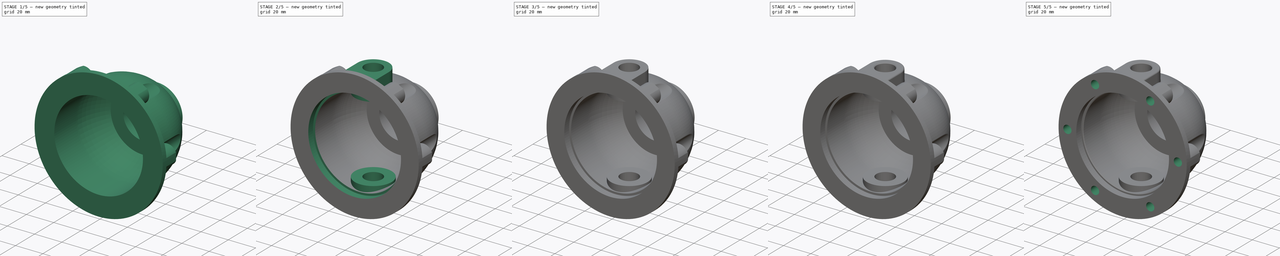
[diagram: build sequence overview — one tinted view per stage of 5, left to right]
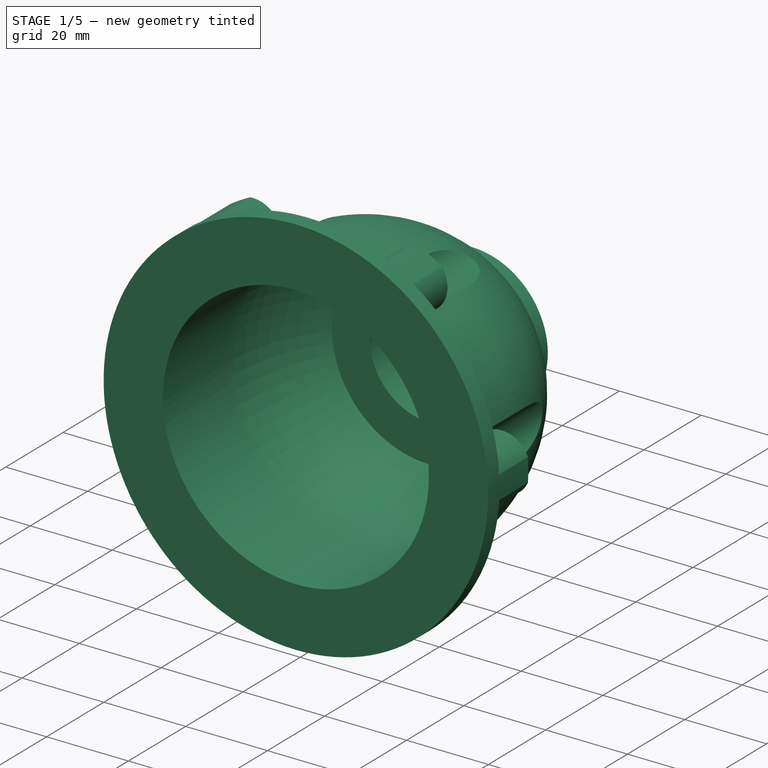
[diagram: stage 1 of 5 — iso view after this stage's code; geometry added in this stage tinted green]
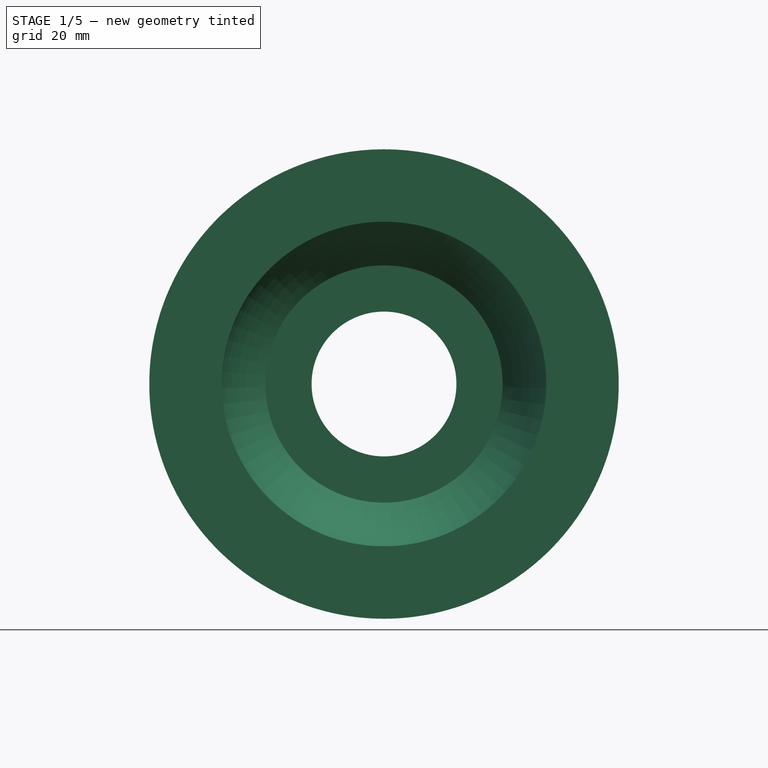
[diagram: stage 1 of 5 — front view after this stage's code; geometry added in this stage tinted green]
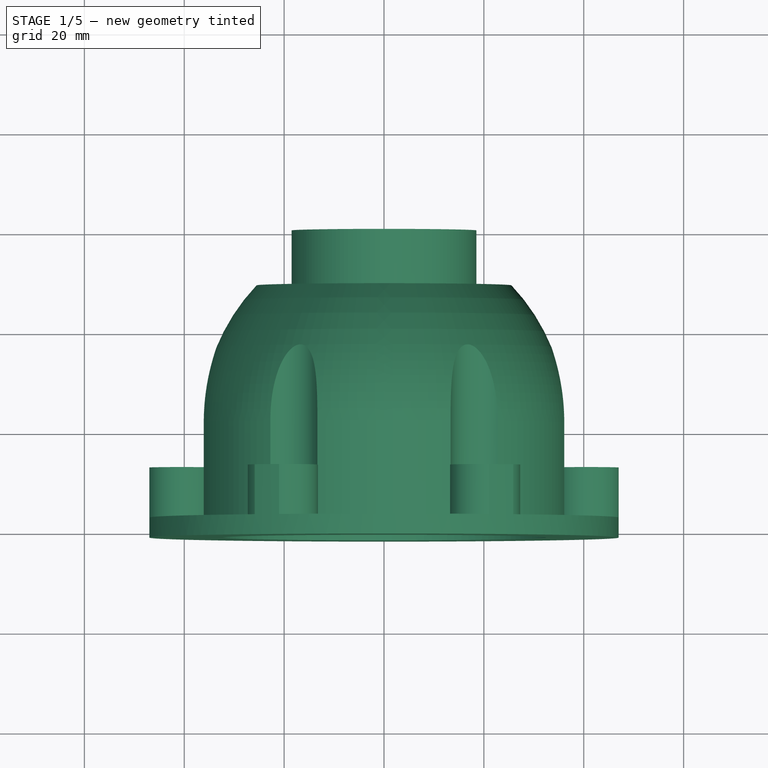
[diagram: stage 1 of 5 — top view after this stage's code; geometry added in this stage tinted green]
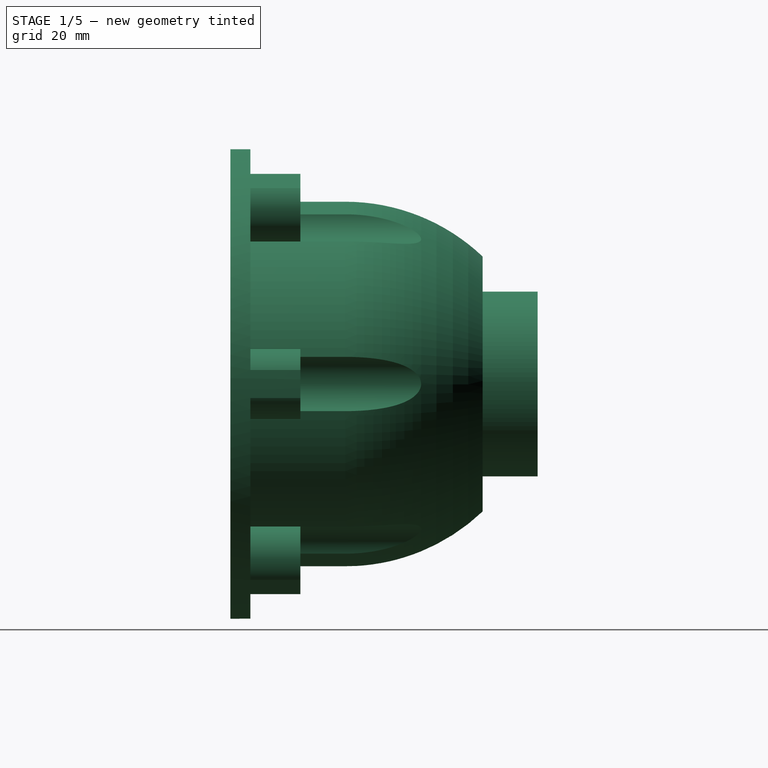
[diagram: stage 1 of 5 — right view after this stage's code; geometry added in this stage tinted green]
FCSTD DOCUMENT  (FreeCAD 1.0R39319 (Git))
Label: DG_Krushna Housing
License: All rights reserved
LicenseURL: https://en.wikipedia.org/wiki/All_rights_reserved
objects: Sketcher::SketchObject×13, PartDesign::Fillet×8, PartDesign::Pocket×5, TechDraw::DrawProjGroupItem×5, PartDesign::Chamfer×4, PartDesign::Pad×2, PartDesign::Mirrored×2, PartDesign::Revolution×1, TechDraw::DrawSVGTemplate×1, PartDesign::Body×1, TechDraw::DrawProjGroup×1, TechDraw::DrawPage×1
note: 91 computed .brp shape members not serialized (recipe doc carries the construction recipe); baked Part::Feature solids carry a one-line shape summary decoded from their .brp

FEATURE [Sketcher::SketchObject] Sketch
  ArcFitTolerance = 1e-06
  AttachmentSupport = -> [YZ_Plane]
  FullyConstrained = true
  MakeInternals = false
  MapMode = 5
  Placement = pos=(0,0,0) rot=(0.57735,0.57735,0.57735;2.0944rad)
  sketch-geometry (13):
    g0: LineSegment StartX=0 StartY=14.5 StartZ=0 EndX=-15 EndY=14.5 EndZ=0
    g1: LineSegment StartX=-15 StartY=14.5 StartZ=0 EndX=-15 EndY=23.75 EndZ=0
    g2: LineSegment [constr] StartX=-61.5 StartY=32.5 StartZ=0 EndX=0 EndY=32.5 EndZ=0
    g3: LineSegment StartX=-61.5 StartY=32.5 StartZ=0 EndX=-61.5 EndY=47 EndZ=0
    g4: LineSegment StartX=-57.5 StartY=36.5 StartZ=0 EndX=-57.5 EndY=47 EndZ=0
    g5: LineSegment StartX=-11 StartY=18.5 StartZ=0 EndX=-11 EndY=25.5217 EndZ=0
    g6: LineSegment StartX=0 StartY=18.5 StartZ=0 EndX=-11 EndY=18.5 EndZ=0
    g7: LineSegment StartX=-61.5 StartY=47 StartZ=0 EndX=-57.5 EndY=47 EndZ=0
    g8: LineSegment StartX=0 StartY=14.5 StartZ=0 EndX=0 EndY=18.5 EndZ=0
    g9: LineSegment StartX=-61.5 StartY=32.5 StartZ=0 EndX=-38.5 EndY=32.5 EndZ=0
    g10: LineSegment StartX=-57.5 StartY=36.5 StartZ=0 EndX=-38.5 EndY=36.5 EndZ=0
    g11: ArcOfCircle CenterX=-38.5 CenterY=-3.43214 CenterZ=0 NormalX=0 NormalY=0 NormalZ=1 AngleXU=0 Radius=35.9321 StartAngle=0.857922 EndAngle=1.5708
    g12: ArcOfCircle CenterX=-38.5 CenterY=-3.43214 CenterZ=0 NormalX=0 NormalY=0 NormalZ=1 AngleXU=0 Radius=39.9321 StartAngle=0.811146 EndAngle=1.5708
  constraints (38):
    c: Distance(g0) = 15
    c: PointOnObject(g0,g-2)
    c: Horizontal(g0)
    c: Coincident(g0,g1)
    c: Vertical(g1)
    c: Distance(g1,g1) = 9.25
    c: Distance(g-1,g0) = 14.5
    c: PointOnObject(g2,g-2)
    c: Horizontal(g2)
    c: Distance(g-1,g2) = 32.5
    c: Distance(g3) = 14.5
    c: Vertical(g3)
    c: Coincident(g5,g6)
    c: Coincident(g7,g3)
    c: Coincident(g7,g4)
    c: Horizontal(g7)
    c: Vertical(g4)
    c: Distance(g4,g3) = 4
    c: Vertical(g5)
    c: Horizontal(g6)
    c: Distance(g5,g1) = 4
    c: DistanceY(g2,g4) = 4
    c: PointOnObject(g6,g-2)
    c: Distance(g0,g6) = 4
    c: Coincident(g8,g0)
    c: Coincident(g8,g6)
    c: Distance(g-2,g3) = 61.5
    c: Coincident(g9,g3)
    c: PointOnObject(g9,g2)
    c: Coincident(g10,g4)
    c: Horizontal(g10)
    c: Coincident(g11,g1)
    c: Coincident(g12,g5)
    c: DistanceX(g9,g9) = 23
    c: Tangent(g11,g9) = 1.5708
    c: Tangent(g12,g10) = 1.5708
    c: Coincident(g12,g11)
    c: Coincident(g2,g3)
FEATURE [PartDesign::Revolution] Revolution
  Angle = 360
  Angle2 = 60
  Axis = (1e-16,1,-1e-16)
  Base = (0,0,0)
  Placement = pos=(0,0,0) rot=(1,1,1;2.0944rad)
  Profile = -> Sketch
  ReferenceAxis = -> Y_Axis
  Refine = true
  Suppressed = false
  Type = 0
FEATURE [Sketcher::SketchObject] Sketch001
  ArcFitTolerance = 1e-06
  AttachmentSupport = -> [Revolution]
  FullyConstrained = true
  MakeInternals = false
  MapMode = 5
  Placement = pos=(-6.3e-15,-57.5,1.9e-14) rot=(0.57735,0.57735,0.57735;4.18879rad)
  sketch-geometry (11):
    g0: Circle [constr] CenterX=0 CenterY=0 CenterZ=0 NormalX=0 NormalY=0 NormalZ=1 AngleXU=0 Radius=40.5
    g1: Circle CenterX=0 CenterY=40.5 CenterZ=0 NormalX=0 NormalY=0 NormalZ=1 AngleXU=0 Radius=7
    g2: Circle CenterX=-35.074 CenterY=20.25 CenterZ=0 NormalX=0 NormalY=0 NormalZ=1 AngleXU=0 Radius=7
    g3: Circle CenterX=-35.074 CenterY=-20.25 CenterZ=0 NormalX=0 NormalY=0 NormalZ=1 AngleXU=0 Radius=7
    g4: Circle CenterX=0 CenterY=-40.5 CenterZ=0 NormalX=0 NormalY=0 NormalZ=1 AngleXU=0 Radius=7
    g5: Circle CenterX=35.074 CenterY=-20.25 CenterZ=0 NormalX=0 NormalY=0 NormalZ=1 AngleXU=0 Radius=7
    g6: Circle CenterX=35.074 CenterY=20.25 CenterZ=0 NormalX=0 NormalY=0 NormalZ=1 AngleXU=0 Radius=7
    g7: LineSegment [constr] StartX=0 StartY=0 StartZ=0 EndX=-35.074 EndY=20.25 EndZ=0
    g8: LineSegment [constr] StartX=0 StartY=0 StartZ=0 EndX=35.074 EndY=20.25 EndZ=0
    g9: LineSegment [constr] StartX=0 StartY=0 StartZ=0 EndX=35.074 EndY=-20.25 EndZ=0
    g10: LineSegment [constr] StartX=0 StartY=0 StartZ=0 EndX=-35.074 EndY=-20.25 EndZ=0
  constraints (24):
    c: Diameter(g0) = 81
    c: Coincident(g0,g-1)
    c: PointOnObject(g1,g-2)
    c: PointOnObject(g1,g0)
    c: Coincident(g7,g0)
    c: Coincident(g7,g2)
    c: Coincident(g8,g0)
    c: Coincident(g8,g6)
    c: Coincident(g9,g0)
    c: Coincident(g9,g5)
    c: Coincident(g10,g0)
    c: Coincident(g10,g3)
    c: Angle(g7,g-1) = 0.523599
    c: Angle(g-1,g8) = 0.523599
    c: Angle(g9,g-1) = 0.523599
    c: Angle(g-1,g10) = 0.523599
    c: PointOnObject(g4,g-2)
    c: PointOnObject(g4,g0)
    c: PointOnObject(g5,g0)
    c: PointOnObject(g6,g0)
    c: PointOnObject(g3,g0)
    c: PointOnObject(g2,g0)
    c: Equal(g1, g2-g6) x5
    c: Diameter(g1) = 14
FEATURE [PartDesign::Pocket] Pocket  label="first cut"
  BaseFeature = -> Revolution
  Direction = (0,-1,0)
  Length = 5
  Length2 = 5
  Placement = pos=(0,0,0) rot=(1,1,1;2.0944rad)
  Profile = -> Sketch001
  ReferenceAxis = -> Sketch001 [N_Axis]
  Refine = true
  Reversed = true
  Suppressed = false
  Type = 1
FEATURE [Sketcher::SketchObject] Sketch002
  ArcFitTolerance = 1e-06
  AttachmentSupport = -> [Pocket]
  FullyConstrained = true
  MakeInternals = false
  MapMode = 5
  Placement = pos=(-6.3e-15,-57.5,1.9e-14) rot=(0.57735,0.57735,0.57735;4.18879rad)
  sketch-geometry (11):
    g0: Circle [constr] CenterX=0 CenterY=0 CenterZ=0 NormalX=0 NormalY=0 NormalZ=1 AngleXU=0 Radius=40.5
    g1: Circle CenterX=0 CenterY=40.5 CenterZ=0 NormalX=0 NormalY=0 NormalZ=1 AngleXU=0 Radius=7
    g2: Circle CenterX=-35.074 CenterY=20.25 CenterZ=0 NormalX=0 NormalY=0 NormalZ=1 AngleXU=0 Radius=7
    g3: Circle CenterX=-35.074 CenterY=-20.25 CenterZ=0 NormalX=0 NormalY=0 NormalZ=1 AngleXU=0 Radius=7
    g4: Circle CenterX=0 CenterY=-40.5 CenterZ=0 NormalX=0 NormalY=0 NormalZ=1 AngleXU=0 Radius=7
    g5: Circle CenterX=35.074 CenterY=-20.25 CenterZ=0 NormalX=0 NormalY=0 NormalZ=1 AngleXU=0 Radius=7
    g6: Circle CenterX=35.074 CenterY=20.25 CenterZ=0 NormalX=0 NormalY=0 NormalZ=1 AngleXU=0 Radius=7
    g7: LineSegment [constr] StartX=0 StartY=0 StartZ=0 EndX=-35.074 EndY=20.25 EndZ=0
    g8: LineSegment [constr] StartX=0 StartY=0 StartZ=0 EndX=35.074 EndY=20.25 EndZ=0
    g9: LineSegment [constr] StartX=0 StartY=0 StartZ=0 EndX=35.074 EndY=-20.25 EndZ=0
    g10: LineSegment [constr] StartX=0 StartY=0 StartZ=0 EndX=-35.074 EndY=-20.25 EndZ=0
  constraints (24):
    c: Diameter(g0) = 81
    c: Coincident(g0,g-1)
    c: PointOnObject(g1,g-2)
    c: PointOnObject(g1,g0)
    c: Coincident(g7,g0)
    c: Coincident(g7,g2)
    c: Coincident(g8,g0)
    c: Coincident(g8,g6)
    c: Coincident(g9,g0)
    c: Coincident(g9,g5)
    c: Coincident(g10,g0)
    c: Coincident(g10,g3)
    c: Angle(g7,g-1) = 0.523599
    c: Angle(g-1,g8) = 0.523599
    c: Angle(g9,g-1) = 0.523599
    c: Angle(g-1,g10) = 0.523599
    c: PointOnObject(g4,g-2)
    c: PointOnObject(g4,g0)
    c: PointOnObject(g5,g0)
    c: PointOnObject(g6,g0)
    c: PointOnObject(g3,g0)
    c: PointOnObject(g2,g0)
    c: Equal(g1, g2-g6) x5
    c: Diameter(g1) = 14
FEATURE [PartDesign::Pad] Pad  label="hole pad"
  BaseFeature = -> Pocket
  Direction = (0,1,0)
  Length = 10
  Length2 = 10
  Placement = pos=(0,0,0) rot=(1,1,1;2.0944rad)
  Profile = -> Sketch002
  ReferenceAxis = -> Sketch002 [N_Axis]
  Refine = true
  Suppressed = false
  Type = 0
FEATURE [Sketcher::SketchObject] Sketch003
  ArcFitTolerance = 1e-06
  AttachmentSupport = -> [Pad]
  FullyConstrained = true
  MakeInternals = false
  MapMode = 5
  Placement = pos=(-6.3e-15,-57.5,1.9e-14) rot=(0.57735,0.57735,0.57735;4.18879rad)
  sketch-geometry (2):
    g0: Circle CenterX=0 CenterY=0 CenterZ=0 NormalX=0 NormalY=0 NormalZ=1 AngleXU=0 Radius=47
    g1: Circle CenterX=0 CenterY=0 CenterZ=0 NormalX=0 NormalY=0 NormalZ=1 AngleXU=0 Radius=58.135
  constraints (4):
    c: Coincident(g0,g-1)
    c: PointOnObject(g-3,g0)
    c: Coincident(g1,g0)
    c: Diameter(g1) = 116.27
FEATURE [PartDesign::Pocket] Pocket001
  BaseFeature = -> Pad
  Direction = (0,-1,0)
  Length = 5
  Length2 = 5
  Placement = pos=(0,0,0) rot=(1,1,1;2.0944rad)
  Profile = -> Sketch003
  ReferenceAxis = -> Sketch003 [N_Axis]
  Refine = true
  Reversed = true
  Suppressed = false
  Type = 1
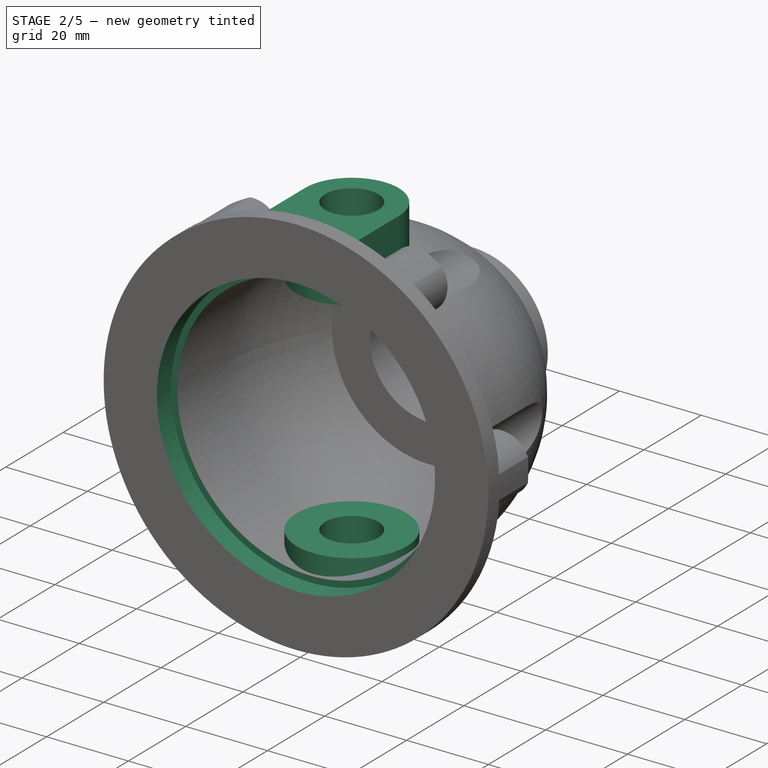
[diagram: stage 2 of 5 — iso view after this stage's code; geometry added in this stage tinted green]
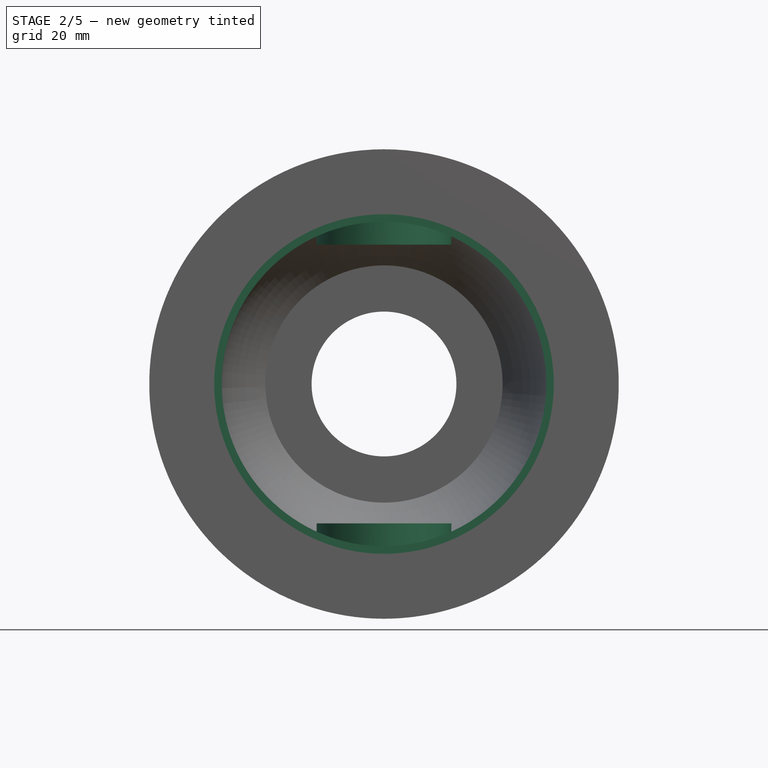
[diagram: stage 2 of 5 — front view after this stage's code; geometry added in this stage tinted green]
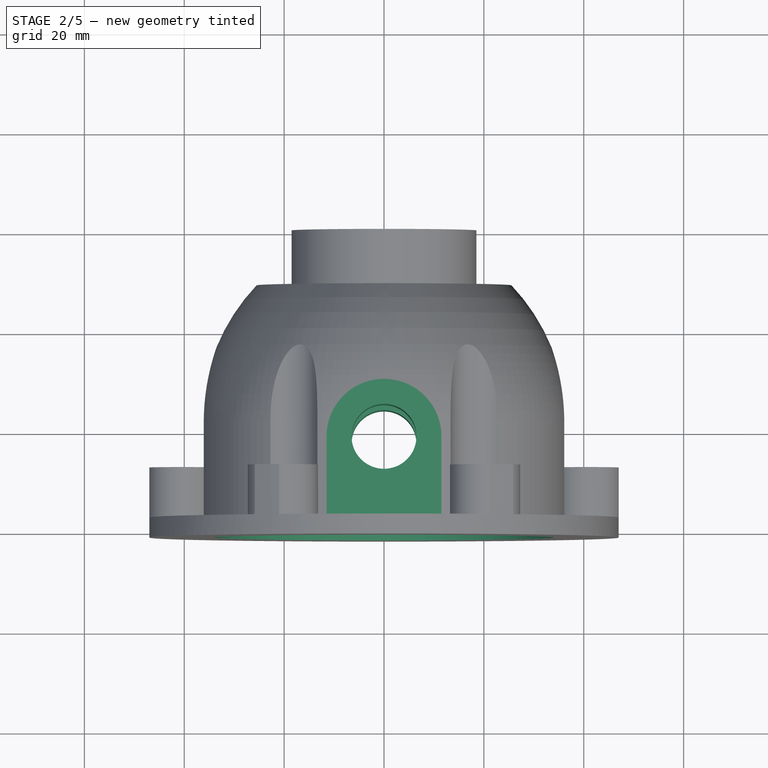
[diagram: stage 2 of 5 — top view after this stage's code; geometry added in this stage tinted green]
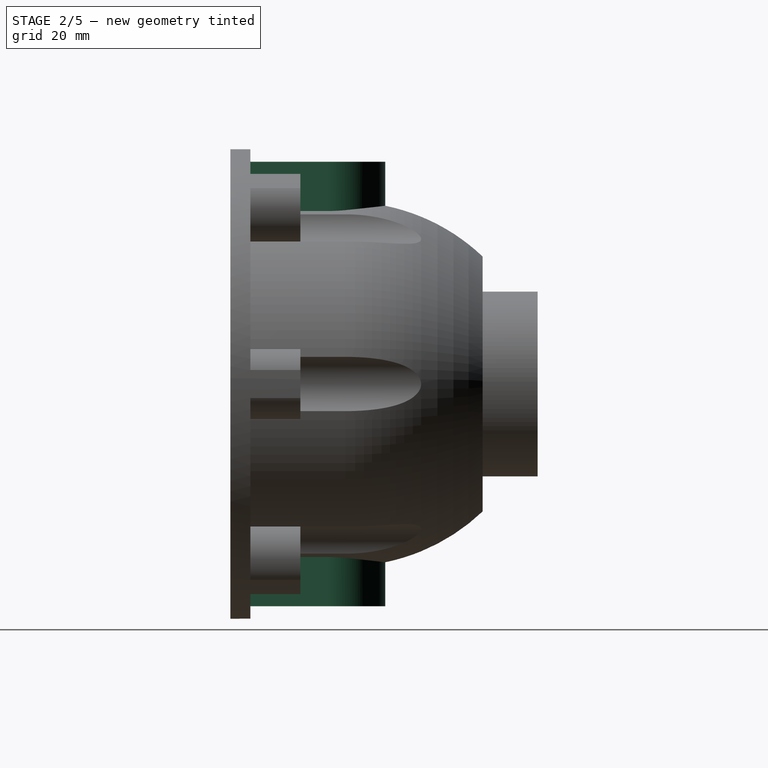
[diagram: stage 2 of 5 — right view after this stage's code; geometry added in this stage tinted green]
FEATURE [Sketcher::SketchObject] Sketch004
  ArcFitTolerance = 1e-06
  AttachmentSupport = -> [Pocket001]
  ExternalGeometry = -> [Pocket001]
  FullyConstrained = true
  MakeInternals = false
  MapMode = 5
  Placement = pos=(-6.8e-15,-61.5,2.03e-14) rot=(0.57735,0.57735,-0.57735;2.0944rad)
  sketch-geometry (1):
    g0: Circle CenterX=0 CenterY=0 CenterZ=0 NormalX=0 NormalY=0 NormalZ=1 AngleXU=0 Radius=34
  constraints (2):
    c: Diameter(g0) = 68
    c: Coincident(g0,g-1)
FEATURE [PartDesign::Pocket] Pocket002
  BaseFeature = -> Pocket001
  Direction = (0,1,-1.3e-15)
  Length = 5
  Length2 = 5
  Placement = pos=(0,0,0) rot=(1,1,1;2.0944rad)
  Profile = -> Sketch004
  ReferenceAxis = -> Sketch004 [N_Axis]
  Refine = true
  Suppressed = false
  Type = 0
FEATURE [Sketcher::SketchObject] Sketch005
  ArcFitTolerance = 1e-06
  AttachmentOffset = pos=(0,0,36.5) rot=(0,0,1;0rad)
  AttachmentSupport = -> [XY_Plane]
  ExternalGeometry = -> [Pocket002]
  FullyConstrained = true
  MakeInternals = false
  MapMode = 5
  Placement = pos=(0,0,36.5) rot=(0,0,1;0rad)
  sketch-geometry (5):
    g0: Circle CenterX=0 CenterY=-42 CenterZ=0 NormalX=0 NormalY=0 NormalZ=1 AngleXU=0 Radius=6.5
    g1: ArcOfCircle CenterX=0 CenterY=-42 CenterZ=0 NormalX=0 NormalY=0 NormalZ=1 AngleXU=0 Radius=11.5 StartAngle=0 EndAngle=3.14159
    g2: LineSegment StartX=-11.5 StartY=-57.5 StartZ=0 EndX=-11.5 EndY=-42 EndZ=0
    g3: LineSegment StartX=11.5 StartY=-57.5 StartZ=0 EndX=11.5 EndY=-42 EndZ=0
    g4: LineSegment StartX=11.5 StartY=-57.5 StartZ=0 EndX=-11.5 EndY=-57.5 EndZ=0
  constraints (13):
    c: Diameter(g0) = 13
    c: Diameter(g1) = 23
    c: Vertical(g2)
    c: Vertical(g3)
    c: Tangent(g1,g3) = -1.5708
    c: Tangent(g1,g2) = 1.5708
    c: Coincident(g4,g3)
    c: Coincident(g4,g2)
    c: Coincident(g0,g1)
    c: PointOnObject(g2,g-3)
    c: PointOnObject(g3,g-5)
    c: PointOnObject(g0,g-2)
    c: DistanceY(g-6,g0) = 19.5
FEATURE [Sketcher::SketchObject] Sketch009
  ArcFitTolerance = 1e-06
  AttachmentSupport = -> [YZ_Plane]
  FullyConstrained = true
  MakeInternals = false
  MapMode = 5
  Placement = pos=(0,0,0) rot=(0.57735,0.57735,0.57735;2.0944rad)
FEATURE [Sketcher::SketchObject] Sketch012
  ArcFitTolerance = 1e-06
  FullyConstrained = true
  MakeInternals = false
  MapMode = 5
  Placement = pos=(-2.96e-14,9.9e-15,44.5) rot=(0,0,-1;1.5708rad)
  constraints (1):
    c: Diameter(g-4) = 13
FEATURE [PartDesign::Pad] Pad001
  BaseFeature = -> Pocket002
  Direction = (0,0,1)
  Length = 8
  Length2 = 2
  Placement = pos=(0,0,0) rot=(1,1,1;2.0944rad)
  Profile = -> Sketch005
  ReferenceAxis = -> Sketch005 [N_Axis]
  Refine = true
  Suppressed = false
  Type = 4
FEATURE [PartDesign::Mirrored] Mirrored
  BaseFeature = -> Pad001
  MirrorPlane = -> XY_Plane
  Originals = -> [Pad001]
  Placement = pos=(0,0,0) rot=(1,1,1;2.0944rad)
  Refine = true
  Suppressed = false
  TransformMode = 0
FEATURE [Sketcher::SketchObject] Sketch006
  ArcFitTolerance = 1e-06
  AttachmentOffset = pos=(0,0,32.5) rot=(0,0,1;0rad)
  AttachmentSupport = -> [XY_Plane]
  ExternalGeometry = -> [Mirrored]
  FullyConstrained = true
  MakeInternals = false
  MapMode = 5
  Placement = pos=(0,0,32.5) rot=(0,0,1;0rad)
  sketch-geometry (2):
    g0: Circle CenterX=0 CenterY=-42 CenterZ=0 NormalX=0 NormalY=0 NormalZ=1 AngleXU=0 Radius=6.5
    g1: Circle CenterX=0 CenterY=-42 CenterZ=0 NormalX=0 NormalY=0 NormalZ=1 AngleXU=0 Radius=13.5
  constraints (4):
    c: Coincident(g0,g-5)
    c: Equal(g0,g-5)
    c: Diameter(g1) = 27
    c: Coincident(g1,g0)
FEATURE [PartDesign::Mirrored] Mirrored001
  BaseFeature = -> Mirrored
  MirrorPlane = -> XY_Plane
  Placement = pos=(0,0,0) rot=(1,1,1;2.0944rad)
  Refine = true
  Suppressed = false
  TransformMode = 0
FEATURE [Sketcher::SketchObject] Sketch007
  ArcFitTolerance = 1e-06
  AttachmentSupport = -> [Mirrored001]
  ExternalGeometry = -> [Mirrored001]
  FullyConstrained = true
  MakeInternals = false
  MapMode = 5
  Placement = pos=(0,0,44.5) rot=(0,0,-1;1.5708rad)
  sketch-geometry (1):
    g0: Circle CenterX=42 CenterY=0 CenterZ=0 NormalX=0 NormalY=0 NormalZ=1 AngleXU=0 Radius=6.5
  constraints (2):
    c: Coincident(g0,g-3)
    c: Equal(g0,g-3)
FEATURE [Sketcher::SketchObject] Sketch010
  ArcFitTolerance = 1e-06
  AttachmentSupport = -> [Pad001]
  FullyConstrained = true
  MakeInternals = false
  MapMode = 5
  Placement = pos=(0,0,44.5) rot=(0,0,-1;1.5708rad)
FEATURE [Sketcher::SketchObject] Sketch011
  ArcFitTolerance = 1e-06
  AttachmentSupport = -> [Pad001]
  ExternalGeometry = -> [Pad001]
  FullyConstrained = true
  MakeInternals = false
  MapMode = 5
  Placement = pos=(0,0,44.5) rot=(0,0,-1;1.5708rad)
  constraints (2):
    c: Radius(g-5) = 11.5
    c: Distance(g-4,g-4) = 15.5
FEATURE [PartDesign::Pocket] Pocket003
  BaseFeature = -> Mirrored001
  Direction = (0,0,-1)
  Length = 5
  Length2 = 5
  Placement = pos=(0,0,0) rot=(1,1,1;2.0944rad)
  Profile = -> Sketch007
  ReferenceAxis = -> Sketch007 [N_Axis]
  Refine = true
  Suppressed = false
  Type = 1
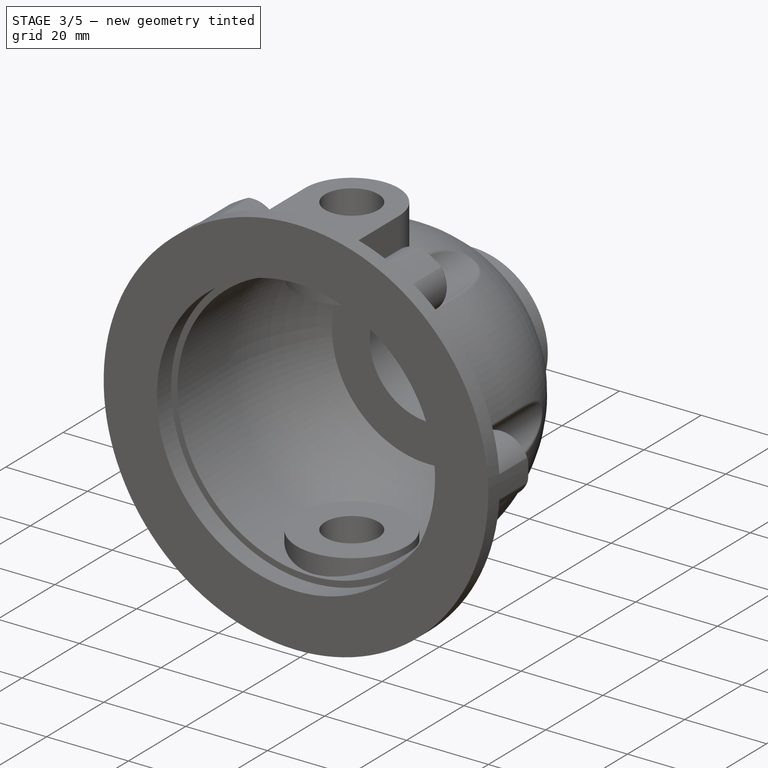
[diagram: stage 3 of 5 — iso view after this stage's code; geometry added in this stage tinted green]
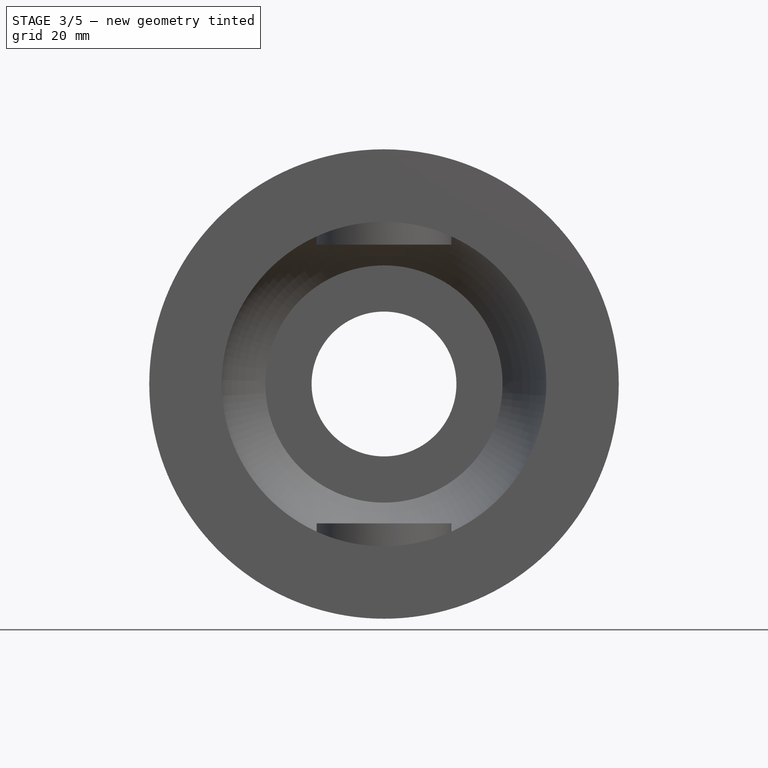
[diagram: stage 3 of 5 — front view after this stage's code; geometry added in this stage tinted green]
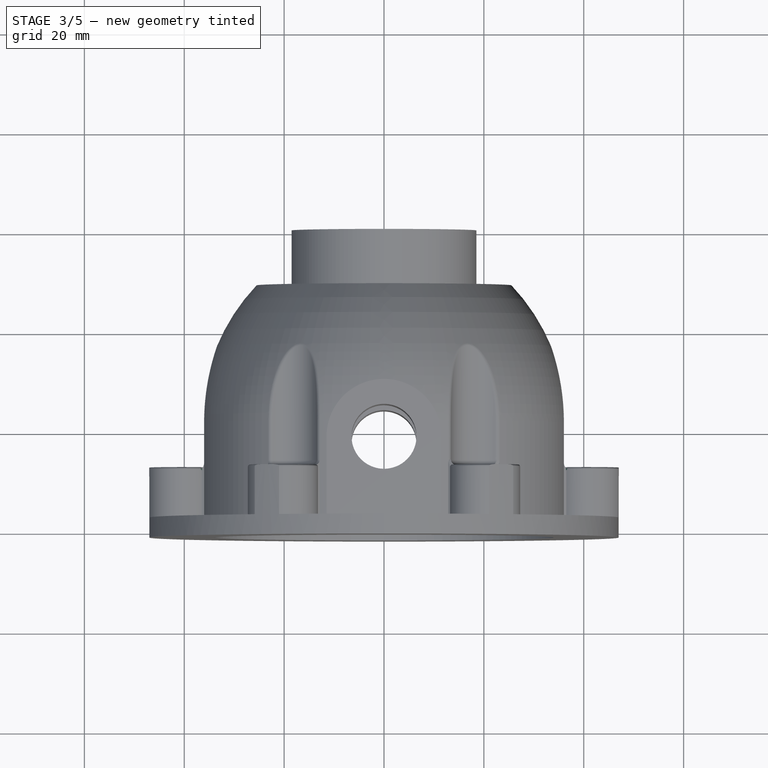
[diagram: stage 3 of 5 — top view after this stage's code; geometry added in this stage tinted green]
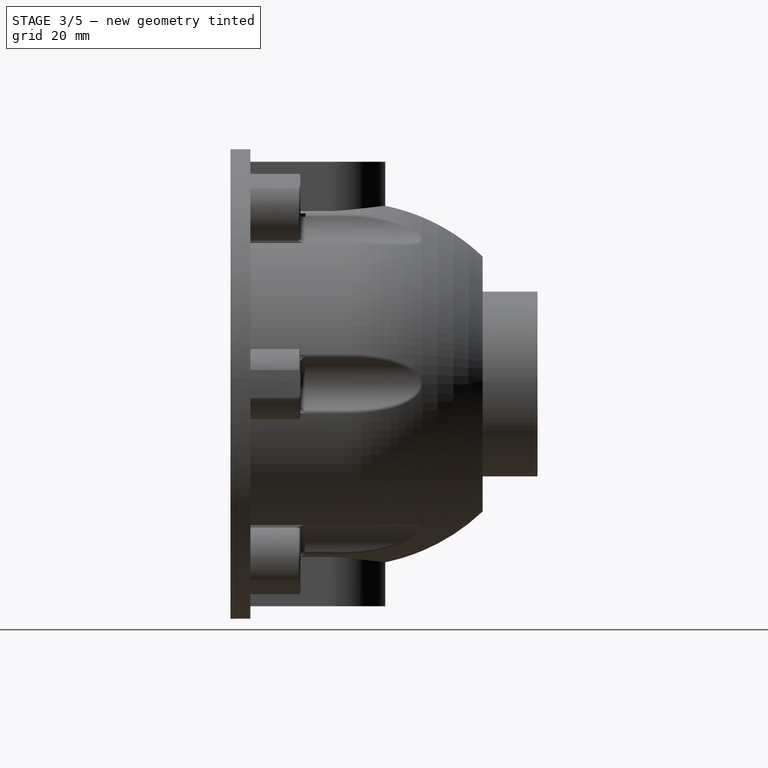
[diagram: stage 3 of 5 — right view after this stage's code; geometry added in this stage tinted green]
FEATURE [Sketcher::SketchObject] Sketch008
  ArcFitTolerance = 1e-06
  AttachmentSupport = -> [Pocket003]
  FullyConstrained = true
  MakeInternals = false
  MapMode = 5
  Placement = pos=(0,-47.5,0) rot=(0.57735,0.57735,0.57735;4.18879rad)
  sketch-geometry (11):
    g0: Circle [constr] CenterX=0 CenterY=0 CenterZ=0 NormalX=0 NormalY=0 NormalZ=1 AngleXU=0 Radius=40.5
    g1: Circle CenterX=0 CenterY=40.5 CenterZ=0 NormalX=0 NormalY=0 NormalZ=1 AngleXU=0 Radius=3
    g2: Circle CenterX=-35.074 CenterY=20.25 CenterZ=0 NormalX=0 NormalY=0 NormalZ=1 AngleXU=0 Radius=3
    g3: Circle CenterX=-35.074 CenterY=-20.25 CenterZ=0 NormalX=0 NormalY=0 NormalZ=1 AngleXU=0 Radius=3
    g4: Circle CenterX=0 CenterY=-40.5 CenterZ=0 NormalX=0 NormalY=0 NormalZ=1 AngleXU=0 Radius=3
    g5: Circle CenterX=35.074 CenterY=-20.25 CenterZ=0 NormalX=0 NormalY=0 NormalZ=1 AngleXU=0 Radius=3
    g6: Circle CenterX=35.074 CenterY=20.25 CenterZ=0 NormalX=0 NormalY=0 NormalZ=1 AngleXU=0 Radius=3
    g7: LineSegment [constr] StartX=0 StartY=0 StartZ=0 EndX=-35.074 EndY=20.25 EndZ=0
    g8: LineSegment [constr] StartX=0 StartY=0 StartZ=0 EndX=35.074 EndY=20.25 EndZ=0
    g9: LineSegment [constr] StartX=0 StartY=0 StartZ=0 EndX=35.074 EndY=-20.25 EndZ=0
    g10: LineSegment [constr] StartX=0 StartY=0 StartZ=0 EndX=-35.074 EndY=-20.25 EndZ=0
  constraints (24):
    c: Diameter(g0) = 81
    c: Coincident(g0,g-1)
    c: PointOnObject(g1,g-2)
    c: PointOnObject(g1,g0)
    c: Coincident(g7,g0)
    c: Coincident(g7,g2)
    c: Coincident(g8,g0)
    c: Coincident(g8,g6)
    c: Coincident(g9,g0)
    c: Coincident(g9,g5)
    c: Coincident(g10,g0)
    c: Coincident(g10,g3)
    c: Angle(g7,g-1) = 0.523599
    c: Angle(g-1,g8) = 0.523599
    c: Angle(g9,g-1) = 0.523599
    c: Angle(g-1,g10) = 0.523599
    c: PointOnObject(g4,g-2)
    c: PointOnObject(g4,g0)
    c: PointOnObject(g5,g0)
    c: PointOnObject(g6,g0)
    c: PointOnObject(g3,g0)
    c: PointOnObject(g2,g0)
    c: Equal(g1, g2-g6) x5
    c: Diameter(g1) = 6
FEATURE [PartDesign::Fillet] Fillet
  Base = -> Pocket003 [Edge94,Edge96,Edge32]
  BaseFeature = -> Pocket003
  Placement = pos=(0,0,0) rot=(1,1,1;2.0944rad)
  Radius = 1
  Refine = true
  SupportTransform = false
  Suppressed = false
  UseAllEdges = false
FEATURE [PartDesign::Fillet] Fillet001
  Base = -> Fillet [Edge83,Edge31,Edge48,Edge47,Edge71,Edge80,Edge67,Edge68,Edge18,Edge16,Edge69,Edge60,Edge41,Edge49,Edge9,Edge7,Edge3,Edge32,Edge23,Edge17,Edge63,Edge70,Edge21,Edge74,Edge77]
  BaseFeature = -> Fillet
  Placement = pos=(0,0,0) rot=(1,1,1;2.0944rad)
  Radius = 1
  Refine = true
  SupportTransform = false
  Suppressed = false
  UseAllEdges = false
FEATURE [PartDesign::Chamfer] Chamfer
  Angle = 45
  Base = -> Fillet001 [Edge94,Edge72,Edge90,Edge82,Edge42,Edge76,Edge64,Edge57,Edge33,Edge37,Edge24,Edge25]
  BaseFeature = -> Fillet001
  ChamferType = 0
  FlipDirection = false
  Placement = pos=(0,0,0) rot=(1,1,1;2.0944rad)
  Refine = true
  Size = 0.5
  Size2 = 1
  SupportTransform = false
  Suppressed = false
  UseAllEdges = false
FEATURE [PartDesign::Fillet] Fillet002
  Base = -> Chamfer [Edge215,Edge213,Edge212,Edge227,Edge228,Edge184,Edge181,Edge55,Edge50,Edge49,Edge154,Edge61,Edge201]
  BaseFeature = -> Chamfer
  Placement = pos=(0,0,0) rot=(1,1,1;2.0944rad)
  Radius = 0.4
  Refine = true
  SupportTransform = false
  Suppressed = false
  UseAllEdges = false
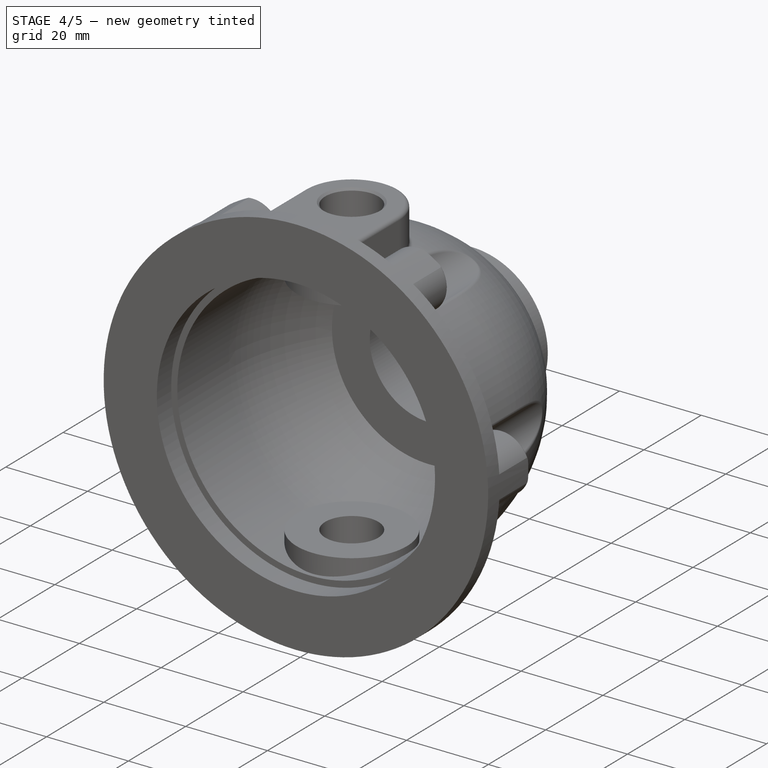
[diagram: stage 4 of 5 — iso view after this stage's code; geometry added in this stage tinted green]
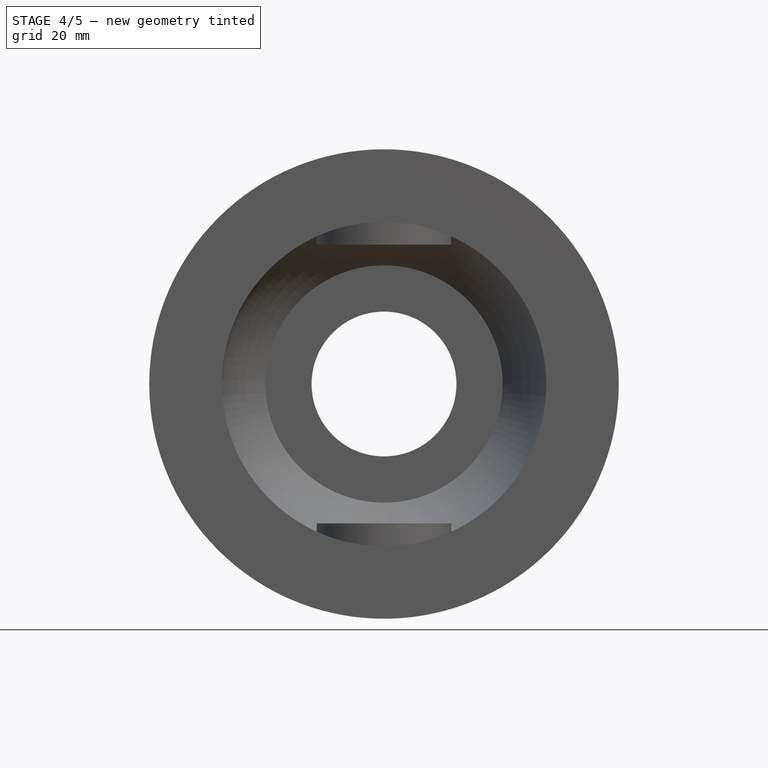
[diagram: stage 4 of 5 — front view after this stage's code; geometry added in this stage tinted green]
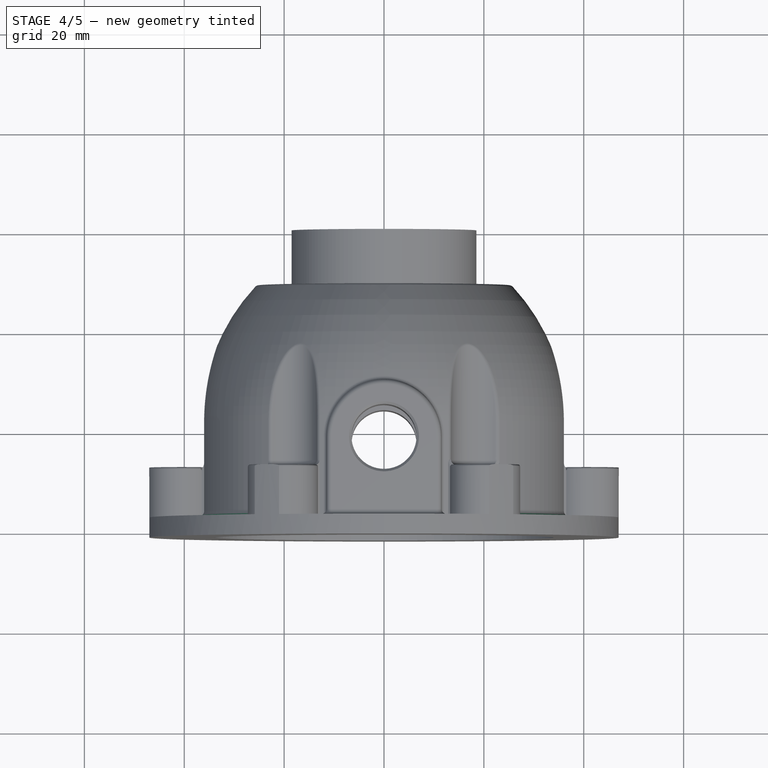
[diagram: stage 4 of 5 — top view after this stage's code; geometry added in this stage tinted green]
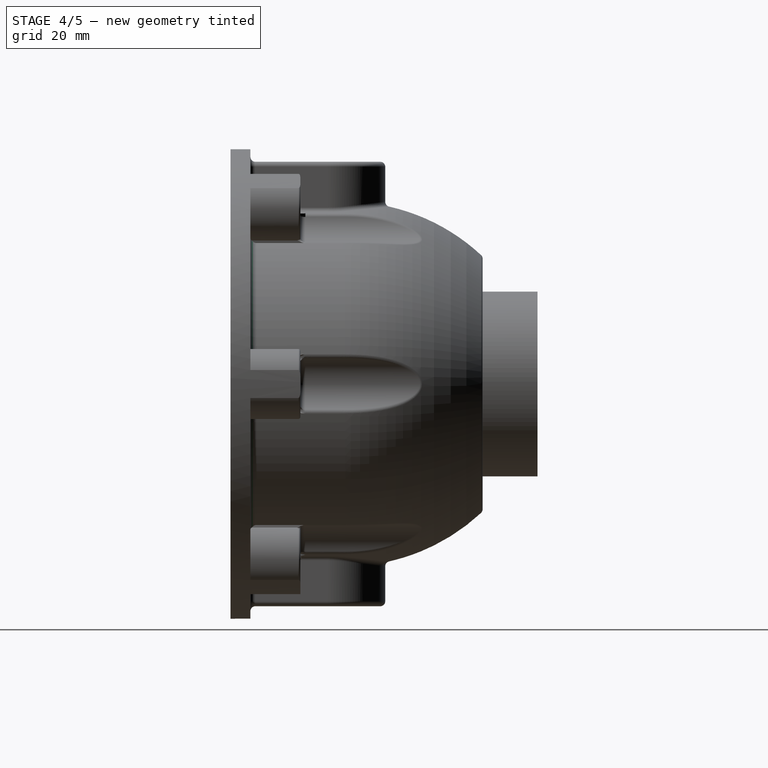
[diagram: stage 4 of 5 — right view after this stage's code; geometry added in this stage tinted green]
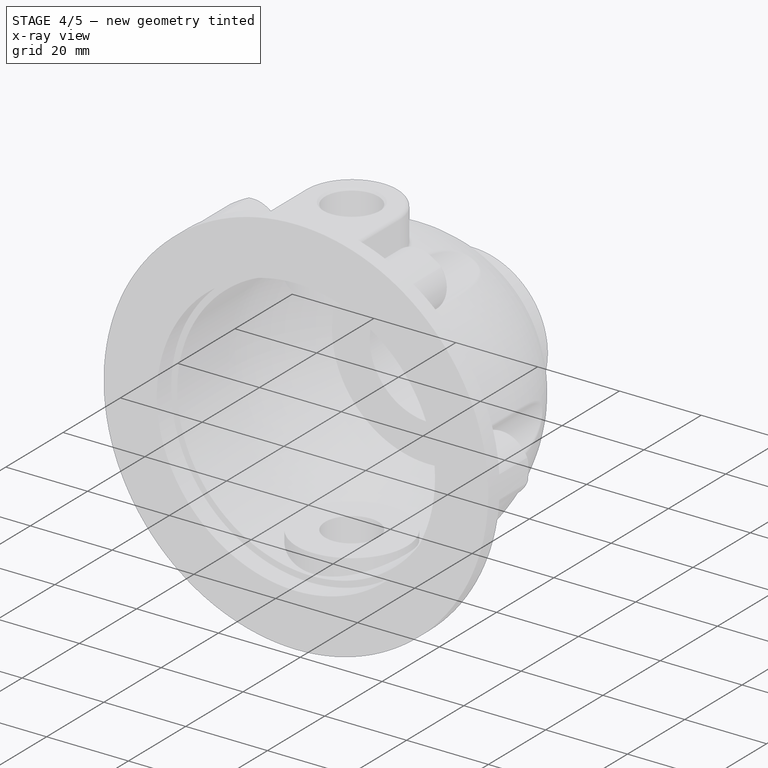
[diagram: stage 4 of 5 — x-ray composite at the iso view; earlier geometry ghosted, this stage's added geometry solid]
FEATURE [PartDesign::Fillet] Fillet003
  Base = -> Fillet002 [Edge247,Edge321,Edge322,Edge85,Edge253,Edge245,Edge244,Edge243,Edge201,Edge200,Edge199,Edge238,Edge82,Edge89,Edge232,Edge231,Edge126,Edge291,Edge125,Edge124,Edge266,Edge236,Edge290]
  BaseFeature = -> Fillet002
  Placement = pos=(0,0,0) rot=(1,1,1;2.0944rad)
  Radius = 1
  Refine = true
  SupportTransform = false
  Suppressed = false
  UseAllEdges = false
FEATURE [PartDesign::Chamfer] Chamfer001
  Angle = 45
  Base = -> Fillet003 [Edge393]
  BaseFeature = -> Fillet003
  ChamferType = 0
  FlipDirection = false
  Placement = pos=(0,0,0) rot=(1,1,1;2.0944rad)
  Refine = true
  Size = 0.5
  Size2 = 1
  SupportTransform = false
  Suppressed = false
  UseAllEdges = false
FEATURE [PartDesign::Chamfer] Chamfer002
  Angle = 45
  Base = -> Chamfer001 [Edge426]
  BaseFeature = -> Chamfer001
  ChamferType = 0
  FlipDirection = false
  Placement = pos=(0,0,0) rot=(1,1,1;2.0944rad)
  Refine = true
  Size = 0.5
  Size2 = 1
  SupportTransform = false
  Suppressed = false
  UseAllEdges = false
FEATURE [PartDesign::Fillet] Fillet004
  Base = -> Chamfer002 [Edge214,Edge176,Edge220,Edge248]
  BaseFeature = -> Chamfer002
  Placement = pos=(0,0,0) rot=(1,1,1;2.0944rad)
  Radius = 1.25
  Refine = true
  SupportTransform = false
  Suppressed = false
  UseAllEdges = false
FEATURE [PartDesign::Fillet] Fillet005
  Base = -> Fillet004 [Edge205]
  BaseFeature = -> Fillet004
  Placement = pos=(0,0,0) rot=(1,1,1;2.0944rad)
  Radius = 1
  Refine = true
  SupportTransform = false
  Suppressed = false
  UseAllEdges = false
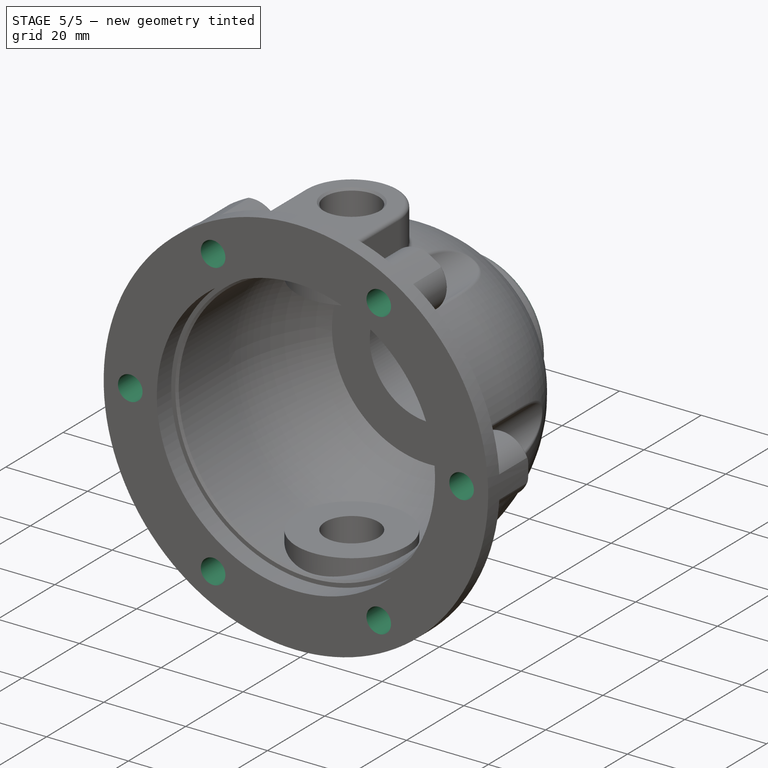
[diagram: stage 5 of 5 — iso view after this stage's code; geometry added in this stage tinted green]
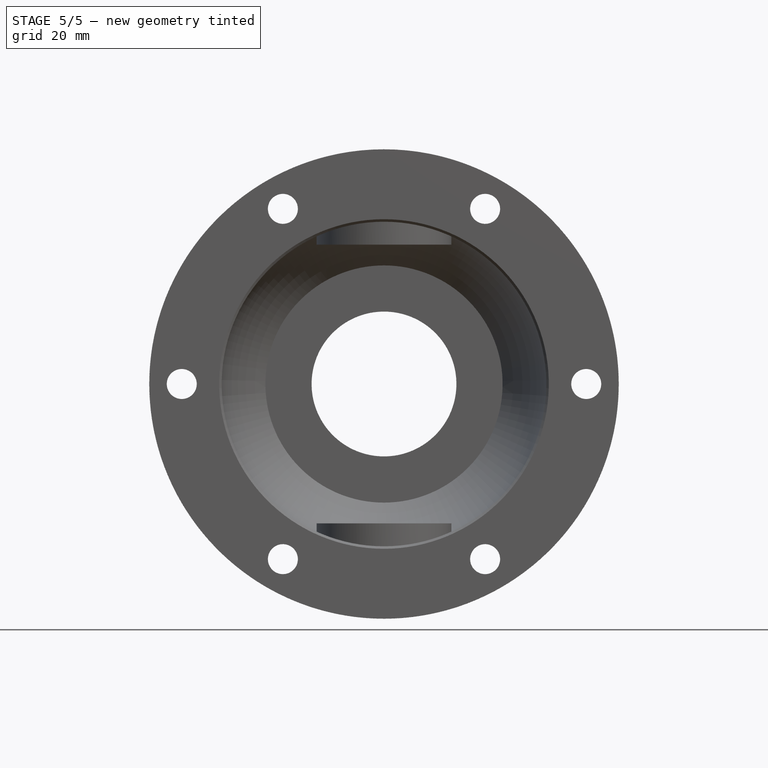
[diagram: stage 5 of 5 — front view after this stage's code; geometry added in this stage tinted green]
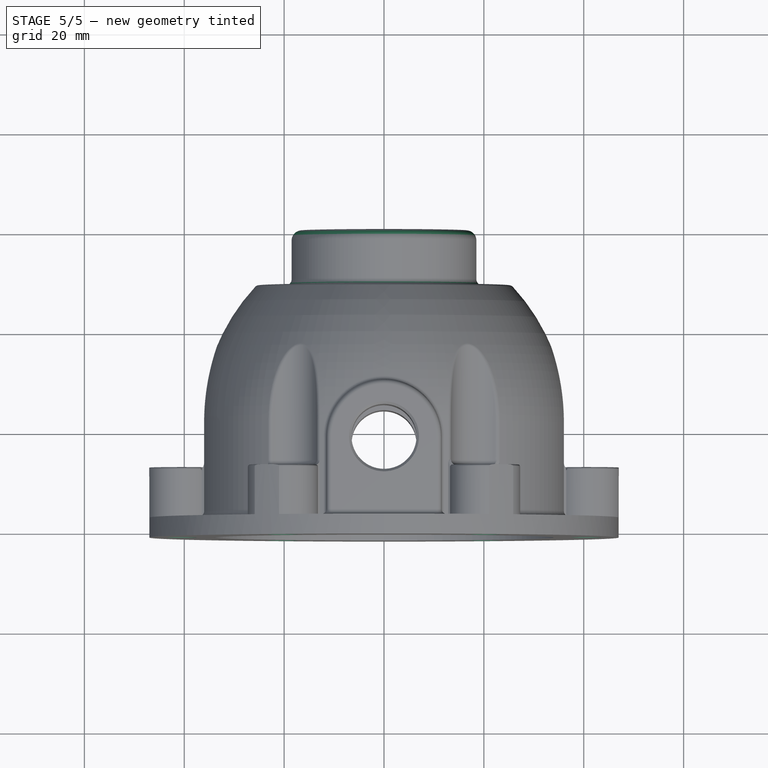
[diagram: stage 5 of 5 — top view after this stage's code; geometry added in this stage tinted green]
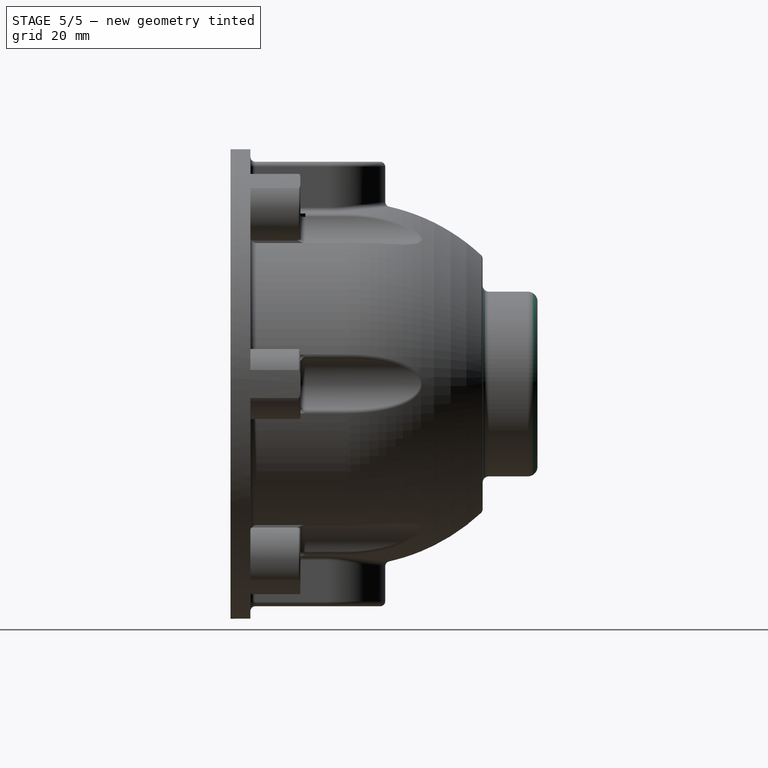
[diagram: stage 5 of 5 — right view after this stage's code; geometry added in this stage tinted green]
FEATURE [PartDesign::Fillet] Fillet006
  Base = -> Fillet005 [Edge104]
  BaseFeature = -> Fillet005
  Placement = pos=(0,0,0) rot=(1,1,1;2.0944rad)
  Radius = 1.25
  Refine = true
  SupportTransform = false
  Suppressed = false
  UseAllEdges = false
FEATURE [PartDesign::Fillet] Fillet007
  Base = -> Fillet006 [Edge8,Edge27]
  BaseFeature = -> Fillet006
  Placement = pos=(0,0,0) rot=(1,1,1;2.0944rad)
  Radius = 1.99
  Refine = true
  SupportTransform = false
  Suppressed = false
  UseAllEdges = false
FEATURE [PartDesign::Chamfer] Chamfer003
  Angle = 45
  Base = -> Fillet007 [Edge308]
  BaseFeature = -> Fillet007
  ChamferType = 0
  FlipDirection = false
  Placement = pos=(0,0,0) rot=(1,1,1;2.0944rad)
  Refine = true
  Size = 0.5
  Size2 = 1
  SupportTransform = false
  Suppressed = false
  UseAllEdges = false
FEATURE [TechDraw::DrawSVGTemplate] Template
  EditableTexts = AuthorName=Krushna manwatkar; CheckDate=CHECK DATE; CreationDate=06-01-2026; DrawingNumber=NUMBER; FC-Title=DG_Krushna Housing; SheetNumber=1 / 1; Subtitle=SUBTITLE; SupervisorName=SUPERVISOR NAME; Weight=WEIGHT; scale=1 : 1
  Height = 297
  Orientation = 1
  Template = C:/Program Files/FreeCAD 1.0/data/Mod/TechDraw/Templates/A3_Landscape_TD.svg
  Width = 420
FEATURE [PartDesign::Pocket] Pocket004
  BaseFeature = -> Chamfer003
  Direction = (0,-1,0)
  Length = 5
  Length2 = 5
  Placement = pos=(0,0,0) rot=(1,1,1;2.0944rad)
  Profile = -> Sketch008
  ReferenceAxis = -> Sketch008 [N_Axis]
  Refine = true
  Suppressed = false
  Type = 1
FEATURE [PartDesign::Body] Body  label="housing"
  AllowCompound = false
  Group = -> [Sketch,Revolution,Sketch001,Pocket,Sketch002,Pad,Sketch003,Pocket001,Sketch004,Pocket002,Sketch005,Pad001,Mirrored,Sketch006,Mirrored001,Sketch007,Pocket003,Sketch008,Fillet,Fillet001,Chamfer,Fillet002,Fillet003,Chamfer001,Chamfer002,Fillet004,Fillet005,Fillet006,Fillet007,Chamfer003,Sketch009,Sketch010,Sketch011,Sketch012,Pocket004]
  Origin = -> Origin
  Placement = pos=(0,0,0) rot=(1,0,0;1.5708rad)
  Tip = -> Pocket004
FEATURE [TechDraw::DrawProjGroupItem] View  label="Front"
  CoarseView = false
  Direction = (0,-1,0)
  Focus = 100
  HardHidden = false
  IsoCount = 0
  IsoHidden = false
  IsoVisible = false
  LockPosition = true
  Perspective = false
  Rotation = 0
  RotationVector = (1,0,0)
  Scale = 0.5
  ScaleType = 2
  ScrubCount = 1
  SeamHidden = false
  SeamVisible = false
  SmoothHidden = false
  SmoothVisible = true
  Source = -> [Body]
  Type = 0
  X = 0
  XDirection = (1,0,0)
  Y = 0
FEATURE [TechDraw::DrawProjGroupItem] ProjItem  label="Bottom"
  CoarseView = false
  Direction = (0,0,-1)
  Focus = 100
  HardHidden = false
  IsoCount = 0
  IsoHidden = false
  IsoVisible = false
  LockPosition = false
  Perspective = false
  Rotation = 0
  RotationVector = (1,0,0)
  Scale = 0.5
  ScaleType = 2
  ScrubCount = 1
  SeamHidden = false
  SeamVisible = false
  SmoothHidden = false
  SmoothVisible = true
  Source = -> [Body]
  Type = 5
  X = 0
  XDirection = (1,0,0)
  Y = -53.875
FEATURE [TechDraw::DrawProjGroupItem] ProjItem001  label="Top"
  CoarseView = false
  Direction = (0,0,1)
  Focus = 100
  HardHidden = false
  IsoCount = 0
  IsoHidden = false
  IsoVisible = false
  LockPosition = false
  Perspective = false
  Rotation = 0
  RotationVector = (1,0,0)
  Scale = 0.5
  ScaleType = 2
  ScrubCount = 1
  SeamHidden = false
  SeamVisible = false
  SmoothHidden = false
  SmoothVisible = true
  Source = -> [Body]
  Type = 4
  X = 0
  XDirection = (1,0,0)
  Y = 53.875
FEATURE [TechDraw::DrawProjGroupItem] ProjItem002  label="FrontBottomRight"
  CoarseView = false
  Direction = (0.57735,-0.57735,-0.57735)
  Focus = 100
  HardHidden = false
  IsoCount = 0
  IsoHidden = false
  IsoVisible = false
  LockPosition = false
  Perspective = false
  Rotation = 0
  RotationVector = (1,0,0)
  Scale = 0.5
  ScaleType = 2
  ScrubCount = 1
  SeamHidden = false
  SeamVisible = false
  SmoothHidden = false
  SmoothVisible = true
  Source = -> [Body]
  Type = 9
  X = 62
  XDirection = (0.707107,0.707107,0)
  Y = -53.875
FEATURE [TechDraw::DrawProjGroupItem] ProjItem003  label="FrontTopRight"
  CoarseView = false
  Direction = (0.57735,-0.57735,0.57735)
  Focus = 100
  HardHidden = false
  IsoCount = 0
  IsoHidden = false
  IsoVisible = false
  LockPosition = false
  Perspective = false
  Rotation = 0
  RotationVector = (1,0,0)
  ScaleType = 0
  ScrubCount = 1
  SeamHidden = false
  SeamVisible = false
  SmoothHidden = false
  SmoothVisible = true
  Source = -> [Body]
  Type = 7
  X = 62
  XDirection = (0.707107,0.707107,0)
  Y = 53.875
FEATURE [TechDraw::DrawProjGroup] ProjGroup
  Anchor = -> View
  AutoDistribute = true
  LockPosition = false
  ProjectionType = 1
  Rotation = 0
  Scale = 0.5
  ScaleType = 2
  Source = -> [Body]
  Views = -> [View,ProjItem,ProjItem001,ProjItem002,ProjItem003]
  X = 135.382
  Y = 154.36
  spacingX = 15
  spacingY = 15
FEATURE [TechDraw::DrawPage] Page
  KeepUpdated = true
  NextBalloonIndex = 1
  ProjectionType = 0
  Template = -> Template
  Views = -> [ProjGroup]
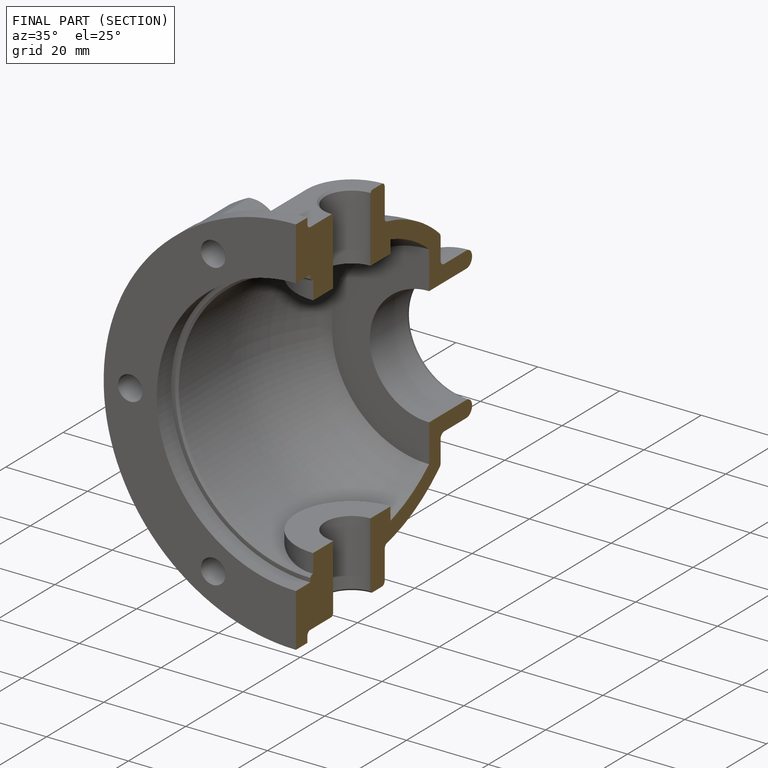
[diagram: finished part — half-section view (interior)]
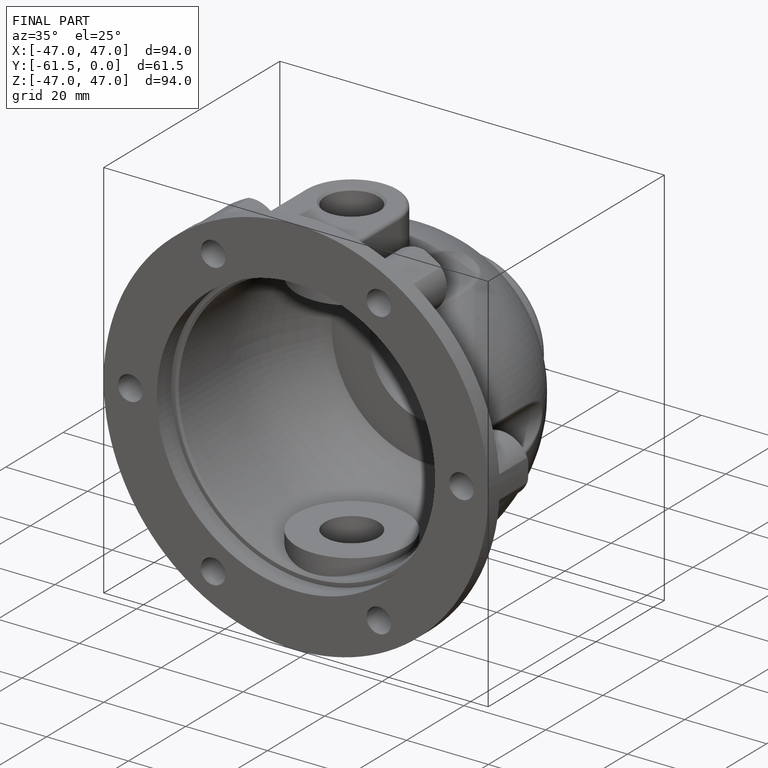
[diagram: finished part — iso view with bounding-box wireframe]
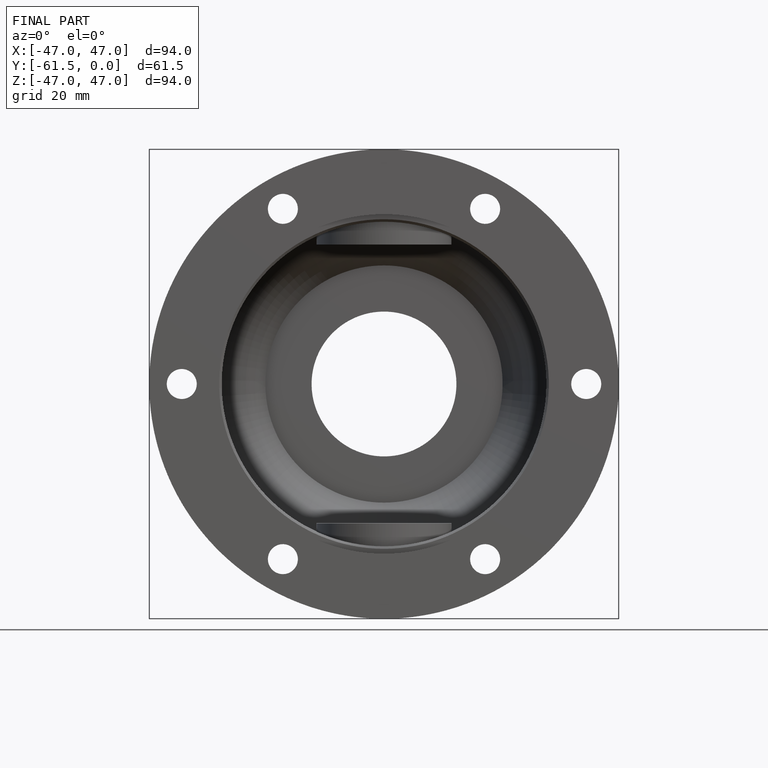
[diagram: finished part — front view with bounding-box wireframe]
